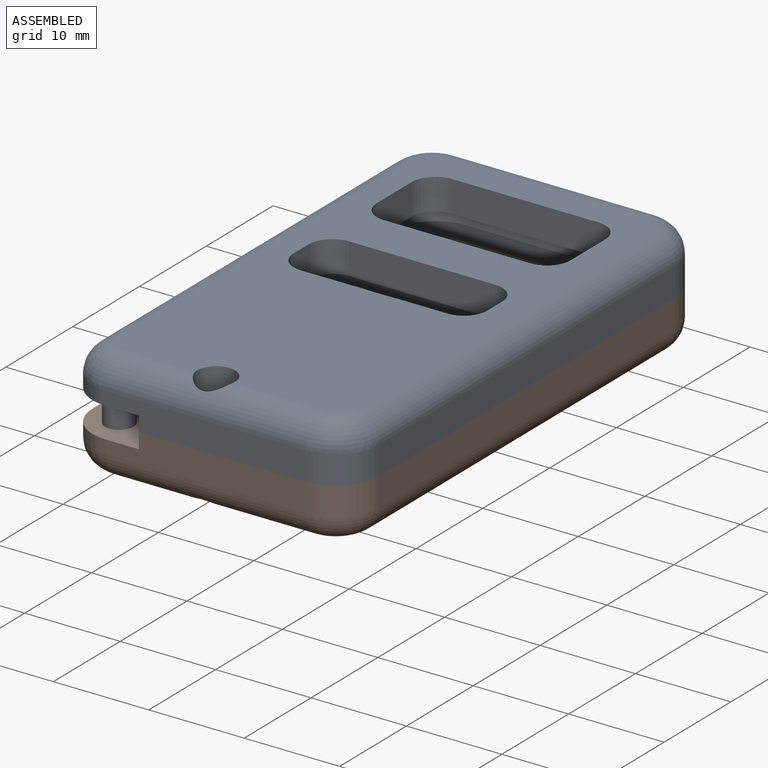
[diagram: assembled view]
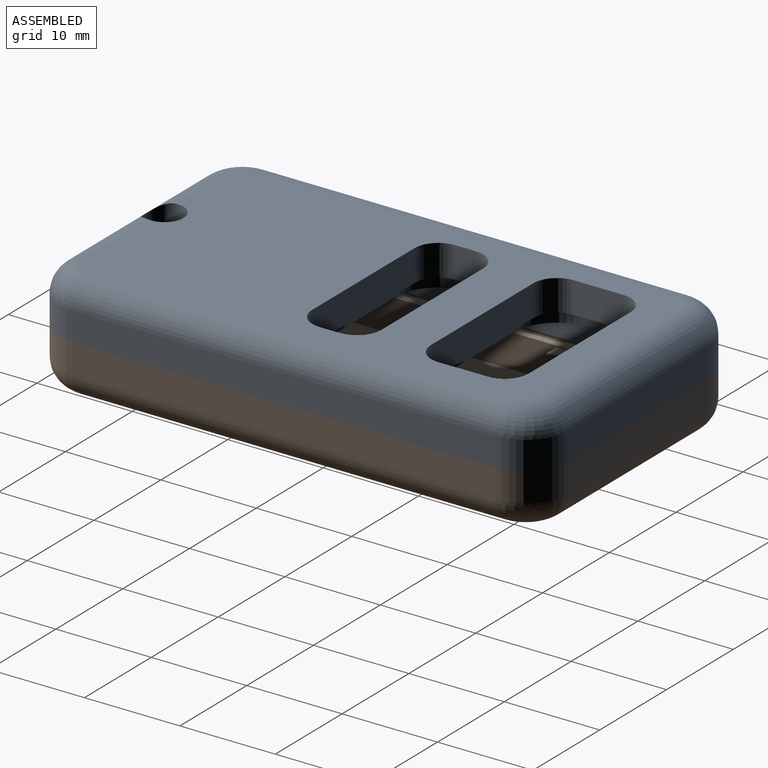
[diagram: assembled view, second angle]
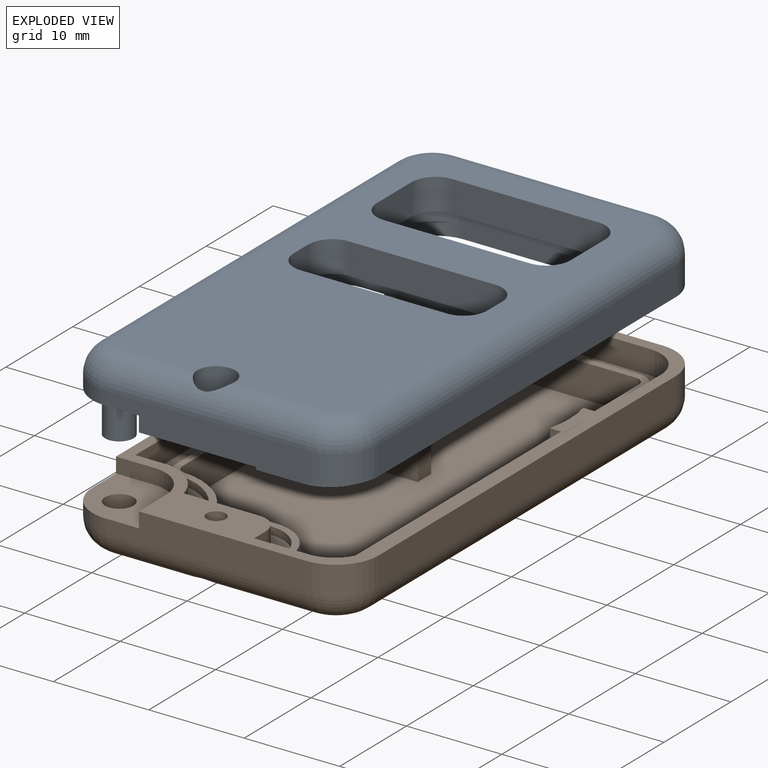
[diagram: exploded view]
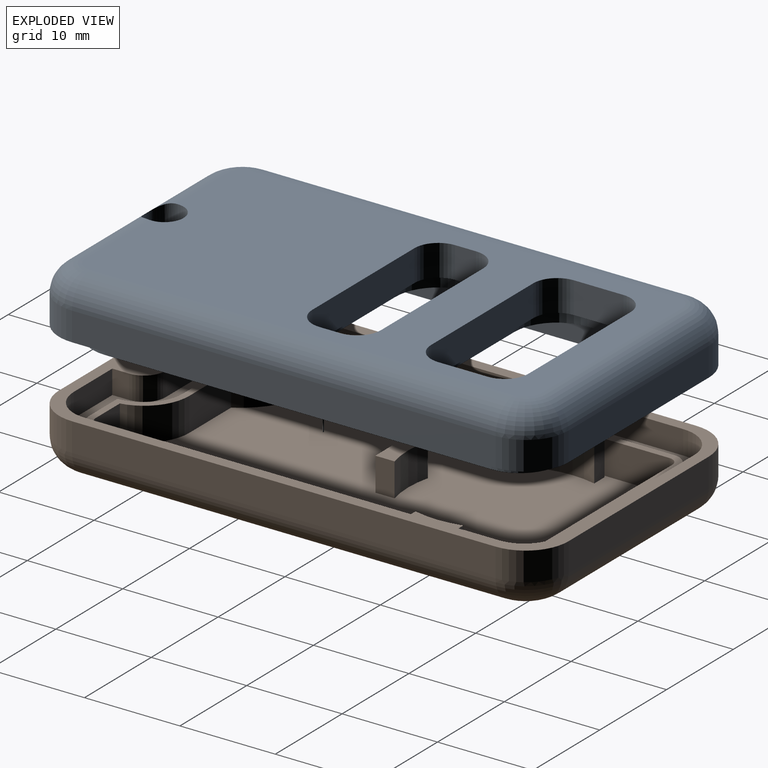
[diagram: exploded view, second angle]
ASSEMBLY  parts=2 mates=2
PART A: 99 faces, bbox 30x53.4x8.5 mm
  f0: plane 53.4x30mm, normal (0,0,1), area 338.4mm2, adj f1,f13,f14,f16,f17,f18,f19,f20
  f1: plane 4x1.6mm, normal (0,-1,0), area 6.4mm2, adj f0,f2,f30,f98
  f2: plane 8x8mm, normal (0,0,1), area 49.2mm2, adj f1,f14,f15,f29,f30,f31,f98
  f3: plane 5.67x3mm, normal (0,0,1), area 6.3mm2, adj f9,f83,f84
  f4: plane 24.26x3.54mm, normal (0,0,1), area 10mm2, adj f8,f10,f33,f60,f68,f82
  f5: plane 3.65x2.4mm, normal (0,0,1), area 3.5mm2, adj f41,f66,f67
  f6: plane 24.7x22.31mm, normal (0,0,1), area 414.4mm2, adj f9,f34,f35,f36,f37,f38,f39,f40
  f7: plane 24.2x11.2mm, normal (0,0,1), area 113.6mm2, adj f41,f44,f45,f46,f47,f48,f49,f50
  f8: cylinder r=3.8mm len=4mm, axis (0,0,1), area 23.4mm2, adj f4,f9,f33,f60,f69,f97
  f9: plane 37.75x4mm, normal (-1,0,0), area 120.8mm2, adj f3,f6,f8,f34,f69,f80,f83,f84
  f10: cylinder r=3.8mm len=4mm, axis (0,0,1), area 20.5mm2, adj f4,f33,f41,f68,f69,f97
  f11: plane 24.2x14.2mm, normal (0,0,1), area 125.3mm2, adj f41,f52,f53,f54,f55,f56,f57,f58
  f12: plane 47.8x24.4mm, normal (0,0,-1), area 814.3mm2, adj f21,f22,f23,f24,f25,f26,f27,f28
  f13: cylinder r=1mm len=3.3mm, axis (0,0,1), area 20.7mm2, adj f0,f42
  f14: plane 21x3mm, normal (0,-1,0), area 57.4mm2, adj f0,f2,f15,f20,f28,f29
  f15: cylinder r=4.5mm len=4.5mm, axis (0,0,-1), area 9.9mm2, adj f2,f14,f26,f98
  f16: plane 44.4x3mm, normal (-1,0,0), area 133.2mm2, adj f0,f17,f20,f25
  f17: cylinder r=4.5mm len=4.5mm, axis (0,0,-1), area 21.2mm2, adj f0,f16,f18,f23
  f18: plane 21x3mm, normal (0,1,0), area 63mm2, adj f0,f17,f19,f21
  f19: cylinder r=4.5mm len=4.5mm, axis (0,0,-1), area 21.2mm2, adj f0,f18,f22,f98
  f20: cylinder r=4.5mm len=4.5mm, axis (0,0,-1), area 21.2mm2, adj f0,f14,f16,f27
  f21: cylinder r=2.8mm len=21mm, axis (1,0,0), area 92.4mm2, adj f12,f18,f22,f23
  f22: torus R=1.7mm, axis (0,0,1), area 24.1mm2, adj f12,f19,f21,f24
  f23: torus R=1.7mm, axis (0,0,1), area 24.1mm2, adj f12,f17,f21,f25
  f24: cylinder r=2.8mm len=44.4mm, axis (0,-1,0), area 195.3mm2, adj f12,f22,f26,f98
  f25: cylinder r=2.8mm len=44.4mm, axis (0,1,0), area 195.3mm2, adj f12,f16,f23,f27
  f26: torus R=1.7mm, axis (0,0,1), area 24.1mm2, adj f12,f15,f24,f28
  f27: torus R=1.7mm, axis (0,0,1), area 24.1mm2, adj f12,f20,f25,f28
  f28: cylinder r=2.8mm len=21mm, axis (-1,0,0), area 86.5mm2, adj f12,f14,f26,f27,f43
  f29: plane 4x1.6mm, normal (1,0,0), area 6.4mm2, adj f0,f2,f14,f30
  f30: cylinder r=4mm len=4mm, axis (0,0,1), area 10.1mm2, adj f0,f1,f2,f29
  f31: cylinder r=1.5mm len=4.3mm, axis (0,0,-1), area 40.5mm2, adj f2,f32
  f32: plane 3x3mm, normal (0,0,1), area 7.1mm2, adj f31
  f33: plane 17.1x4mm, normal (0,-1,0), area 68.4mm2, adj f4,f8,f10,f97
  f34: plane 4x1.35mm, normal (0,1,0), area 5.4mm2, adj f6,f9,f35,f97
  f35: cylinder r=5.2mm len=5.06mm, axis (0,0,1), area 27.8mm2, adj f6,f34,f36,f97
  f36: plane 7.94x4mm, normal (0,1,0), area 31.8mm2, adj f6,f35,f37,f97
  f37: cylinder r=2.25mm len=4mm, axis (0,0,1), area 14.1mm2, adj f6,f36,f38,f97
  f38: plane 4x0.3mm, normal (-1,0,0), area 1.2mm2, adj f6,f37,f39,f97
  f39: plane 4.3x4mm, normal (0,1,0), area 17.2mm2, adj f6,f38,f40,f97
  f40: cylinder r=3.8mm len=4mm, axis (0,0,1), area 23.9mm2, adj f6,f39,f41,f97
  f41: plane 40.5x4mm, normal (1,0,0), area 146.9mm2, adj f5,f6,f7,f10,f11,f40,f61,f62
  f42: plane 4x4mm, normal (0,0,-1), area 9.4mm2, adj f13,f43
  f43: cylinder r=2mm len=4mm, axis (0,0,-1), area 29.5mm2, adj f12,f28,f42
  f44: plane 15.3x3.3mm, normal (0,-1,0), area 50.5mm2, adj f7,f12,f45,f51
  f45: cylinder r=2.5mm len=3.3mm, axis (0,0,1), area 13mm2, adj f7,f12,f44,f46
  f46: plane 3.3x2.2mm, normal (-1,0,0), area 7.3mm2, adj f7,f12,f45,f47
  f47: cylinder r=2.5mm len=3.3mm, axis (0,0,1), area 13mm2, adj f7,f12,f46,f48
  f48: plane 15.3x3.3mm, normal (0,1,0), area 50.5mm2, adj f7,f12,f47,f49
  f49: cylinder r=2.5mm len=3.3mm, axis (0,0,1), area 13mm2, adj f7,f12,f48,f50
  f50: plane 3.3x2.2mm, normal (1,0,0), area 7.3mm2, adj f7,f12,f49,f51
  f51: cylinder r=2.5mm len=3.3mm, axis (0,0,1), area 13mm2, adj f7,f12,f44,f50
  f52: plane 5.2x3.3mm, normal (-1,0,0), area 17.2mm2, adj f11,f12,f53,f59
  f53: cylinder r=2.5mm len=3.3mm, axis (0,0,1), area 13mm2, adj f11,f12,f52,f54
  f54: plane 15.3x3.3mm, normal (0,1,0), area 50.5mm2, adj f11,f12,f53,f55
  f55: cylinder r=2.5mm len=3.3mm, axis (0,0,1), area 13mm2, adj f11,f12,f54,f56
  f56: plane 5.2x3.3mm, normal (1,0,0), area 17.2mm2, adj f11,f12,f55,f57
  f57: cylinder r=2.5mm len=3.3mm, axis (0,0,1), area 13mm2, adj f11,f12,f56,f58
  f58: plane 15.3x3.3mm, normal (0,-1,0), area 50.5mm2, adj f11,f12,f57,f59
  f59: cylinder r=2.5mm len=3.3mm, axis (0,0,1), area 13mm2, adj f11,f12,f52,f58
  f60: cylinder r=5.5mm len=4.99mm, axis (0,0,-1), area 11.6mm2, adj f4,f8,f69,f82
  f61: cylinder r=4.5mm len=4.4mm, axis (0,0,-1), area 11.3mm2, adj f11,f41,f69,f70
  f62: cylinder r=4.5mm len=4.4mm, axis (0,0,-1), area 11.3mm2, adj f11,f41,f69,f74
  f63: cylinder r=4.5mm len=4.4mm, axis (0,0,-1), area 11.3mm2, adj f7,f41,f69,f75
  f64: cylinder r=4.5mm len=4.4mm, axis (0,0,-1), area 11.3mm2, adj f7,f41,f69,f79
  f65: cylinder r=5.5mm len=4.4mm, axis (0,0,-1), area 9.4mm2, adj f6,f41,f69,f81
  f66: cylinder r=5.5mm len=2.4mm, axis (0,0,-1), area 5.7mm2, adj f5,f41,f67,f69
  f67: cylinder r=5.5mm len=2.4mm, axis (0,0,-1), area 5.7mm2, adj f5,f41,f66,f69
  f68: cylinder r=5.5mm len=3.97mm, axis (0,0,-1), area 8.2mm2, adj f4,f10,f69,f82
  f69: plane 28.65x24.7mm, normal (0,0,1), area 101.4mm2, adj f8,f9,f10,f41,f60,f61,f62,f63
  f70: plane 15.3x1.85mm, normal (0,1,0), area 28.3mm2, adj f11,f61,f69,f71
  f71: cylinder r=4.5mm len=4.5mm, axis (0,0,-1), area 13.1mm2, adj f11,f69,f70,f72
  f72: plane 5.2x1.85mm, normal (-1,0,0), area 9.6mm2, adj f11,f69,f71,f73
  f73: cylinder r=4.5mm len=4.5mm, axis (0,0,-1), area 13.1mm2, adj f11,f69,f72,f74
  f74: plane 15.3x1.85mm, normal (0,-1,0), area 28.3mm2, adj f11,f62,f69,f73
  f75: plane 15.3x1.85mm, normal (0,1,0), area 28.3mm2, adj f7,f63,f69,f76
  f76: cylinder r=4.5mm len=4.5mm, axis (0,0,-1), area 13.1mm2, adj f7,f69,f75,f77
  f77: plane 2.2x1.85mm, normal (-1,0,0), area 4.1mm2, adj f7,f69,f76,f78
  f78: cylinder r=4.5mm len=4.5mm, axis (0,0,-1), area 13.1mm2, adj f7,f69,f77,f79
  f79: plane 15.3x1.85mm, normal (0,-1,0), area 28.3mm2, adj f7,f64,f69,f78
  f80: cylinder r=5.5mm len=5mm, axis (0,0,-1), area 11.6mm2, adj f6,f9,f69,f81
  f81: plane 15.3x1.85mm, normal (0,-1,0), area 28.3mm2, adj f6,f65,f69,f80
  f82: plane 15.3x1.85mm, normal (0,1,0), area 28.3mm2, adj f4,f60,f68,f69
  f83: cylinder r=5.5mm len=3mm, axis (0,0,-1), area 7.8mm2, adj f3,f9,f69,f84
  f84: cylinder r=5.5mm len=3mm, axis (0,0,-1), area 7.8mm2, adj f3,f9,f69,f83
  f85: plane 40.5x1.5mm, normal (-1,0,0), area 60.8mm2, adj f0,f86,f96,f97
  f86: cylinder r=4.3mm len=4.3mm, axis (0,0,-1), area 10.1mm2, adj f0,f85,f87,f97
  f87: plane 17.1x1.5mm, normal (0,1,0), area 25.7mm2, adj f0,f86,f88,f97
  f88: cylinder r=4.3mm len=4.3mm, axis (0,0,-1), area 10.1mm2, adj f0,f87,f89,f97
  f89: plane 38.25x1.5mm, normal (1,0,0), area 57.4mm2, adj f0,f88,f90,f97
  f90: plane 1.85x1.5mm, normal (0,-1,0), area 2.8mm2, adj f0,f89,f91,f97
  f91: cylinder r=4.7mm len=4.65mm, axis (0,0,-1), area 10mm2, adj f0,f90,f92,f97
  f92: plane 8.35x1.5mm, normal (0,-1,0), area 12.5mm2, adj f0,f91,f93,f97
  f93: cylinder r=1.75mm len=1.75mm, axis (0,0,-1), area 4.1mm2, adj f0,f92,f94,f97
  f94: plane 1.5x0.8mm, normal (1,0,0), area 1.2mm2, adj f0,f93,f95,f97
  f95: plane 4.8x1.5mm, normal (0,-1,0), area 7.2mm2, adj f0,f94,f96,f97
  f96: cylinder r=4.3mm len=4.3mm, axis (0,0,-1), area 10.1mm2, adj f0,f85,f95,f97
  f97: plane 49.1x25.7mm, normal (0,0,1), area 69.7mm2, adj f8,f9,f10,f33,f34,f35,f36,f37
  f98: plane 44.4x3mm, normal (1,0,0), area 127.6mm2, adj f0,f1,f2,f15,f19,f24
PART B: 78 faces, bbox 30x53.4x5.8 mm
  f0: plane 47.8x24.4mm, normal (0,0,-1), area 1156.8mm2, adj f13,f14,f15,f16,f17,f18,f19,f20
  f1: cylinder r=1mm len=3.3mm, axis (0,0,1), area 20.7mm2, adj f4,f76
  f2: plane 6.63x3.5mm, normal (-1,0,0), area 23.2mm2, adj f50,f51,f60,f68
  f3: plane 51x27.6mm, normal (0,0,1), area 256.6mm2, adj f27,f28,f29,f30,f31,f32,f33,f34
  f4: plane 53.4x30mm, normal (0,0,1), area 224.3mm2, adj f1,f5,f6,f8,f9,f10,f11,f12
  f5: plane 44.4x3mm, normal (-1,0,0), area 127.6mm2, adj f4,f7,f11,f16,f21,f24
  f6: plane 21x3mm, normal (0,-1,0), area 57.4mm2, adj f4,f7,f12,f20,f22,f24
  f7: cylinder r=4.5mm len=4.5mm, axis (0,0,-1), area 9.9mm2, adj f5,f6,f18,f24
  f8: plane 44.4x3mm, normal (1,0,0), area 133.2mm2, adj f4,f9,f12,f17
  f9: cylinder r=4.5mm len=4.5mm, axis (0,0,-1), area 21.2mm2, adj f4,f8,f10,f15
  f10: plane 21x3mm, normal (0,1,0), area 63mm2, adj f4,f9,f11,f13
  f11: cylinder r=4.5mm len=4.5mm, axis (0,0,-1), area 21.2mm2, adj f4,f5,f10,f14
  f12: cylinder r=4.5mm len=4.5mm, axis (0,0,-1), area 21.2mm2, adj f4,f6,f8,f19
  f13: cylinder r=2.8mm len=21mm, axis (-1,0,0), area 92.4mm2, adj f0,f10,f14,f15
  f14: torus R=1.7mm, axis (0,0,1), area 24.1mm2, adj f0,f11,f13,f16
  f15: torus R=1.7mm, axis (0,0,1), area 24.1mm2, adj f0,f9,f13,f17
  f16: cylinder r=2.8mm len=44.4mm, axis (0,-1,0), area 195.3mm2, adj f0,f5,f14,f18
  f17: cylinder r=2.8mm len=44.4mm, axis (0,1,0), area 195.3mm2, adj f0,f8,f15,f19
  f18: torus R=1.7mm, axis (0,0,1), area 24.1mm2, adj f0,f7,f16,f20
  f19: torus R=1.7mm, axis (0,0,1), area 24.1mm2, adj f0,f12,f17,f20
  f20: cylinder r=2.8mm len=21mm, axis (1,0,0), area 86.5mm2, adj f0,f6,f18,f19,f77
  f21: plane 4x1.6mm, normal (0,-1,0), area 6.4mm2, adj f4,f5,f23,f24
  f22: plane 4x1.6mm, normal (-1,0,0), area 6.4mm2, adj f4,f6,f23,f24
  f23: cylinder r=4mm len=4mm, axis (0,0,1), area 10.1mm2, adj f4,f21,f22,f24
  f24: plane 8x8mm, normal (0,0,1), area 49.2mm2, adj f5,f6,f7,f21,f22,f23,f25
  f25: cylinder r=1.5mm len=3mm, axis (0,0,1), area 18.8mm2, adj f24,f26
  f26: plane 3x3mm, normal (0,0,1), area 7.1mm2, adj f25
  f27: plane 20x2.5mm, normal (0,-1,0), area 50mm2, adj f3,f4,f28,f38
  f28: cylinder r=3.8mm len=3.8mm, axis (0,0,1), area 14.9mm2, adj f3,f4,f27,f29
  f29: plane 39.2x2.5mm, normal (1,0,0), area 98mm2, adj f3,f4,f28,f30
  f30: plane 2.8x2.5mm, normal (0,1,0), area 7mm2, adj f3,f4,f29,f31
  f31: cylinder r=5.2mm len=5.06mm, axis (0,0,1), area 17.4mm2, adj f3,f4,f30,f32
  f32: plane 7.94x2.5mm, normal (0,1,0), area 19.9mm2, adj f3,f4,f31,f33
  f33: cylinder r=2.25mm len=2.5mm, axis (0,0,1), area 8.8mm2, adj f3,f4,f32,f34
  f34: plane 2.5x1.75mm, normal (1,0,0), area 4.4mm2, adj f3,f4,f33,f35
  f35: plane 5.75x2.5mm, normal (0,1,0), area 14.4mm2, adj f3,f4,f34,f36
  f36: cylinder r=3.8mm len=3.8mm, axis (0,0,1), area 14.9mm2, adj f3,f4,f35,f37
  f37: plane 43.4x2.5mm, normal (-1,0,0), area 108.5mm2, adj f3,f4,f36,f38
  f38: cylinder r=3.8mm len=3.8mm, axis (0,0,1), area 14.9mm2, adj f3,f4,f27,f37
  f39: plane 36.03x0.8mm, normal (-1,0,0), area 28.8mm2, adj f3,f40,f49,f50
  f40: cylinder r=1.7mm len=1.69mm, axis (0,0,-1), area 2mm2, adj f3,f39,f41,f50
  f41: cylinder r=7mm len=5.76mm, axis (0,0,-1), area 5.9mm2, adj f3,f40,f42,f50
  f42: plane 6.68x0.8mm, normal (0,-1,0), area 5.3mm2, adj f3,f41,f43,f50
  f43: cylinder r=4.05mm len=4.05mm, axis (0,0,-1), area 5mm2, adj f3,f42,f44,f50
  f44: plane 4.25x0.8mm, normal (0,-1,0), area 3.4mm2, adj f3,f43,f45,f50
  f45: cylinder r=1.7mm len=1.7mm, axis (0,0,-1), area 2.1mm2, adj f3,f44,f46,f50
  f46: plane 44x0.8mm, normal (1,0,0), area 35.2mm2, adj f3,f45,f47,f50
  f47: cylinder r=1.7mm len=1.7mm, axis (0,0,-1), area 2.1mm2, adj f3,f46,f48,f50
  f48: plane 20.6x0.8mm, normal (0,1,0), area 16.5mm2, adj f3,f47,f49,f50
  f49: cylinder r=1.7mm len=1.7mm, axis (0,0,-1), area 2.1mm2, adj f3,f39,f48,f50
  f50: plane 47.4x24mm, normal (0,0,1), area 98.3mm2, adj f2,f39,f40,f41,f42,f43,f44,f45
  f51: plane 46x22.6mm, normal (0,0,1), area 930.5mm2, adj f2,f52,f53,f54,f55,f56,f57,f58
  f52: plane 36.03x3.5mm, normal (1,0,0), area 126.1mm2, adj f50,f51,f53,f62
  f53: cylinder r=1mm len=3.5mm, axis (0,0,1), area 5.2mm2, adj f50,f51,f52,f54
  f54: cylinder r=7.7mm len=6.13mm, axis (0,0,1), area 26.7mm2, adj f50,f51,f53,f55
  f55: plane 6.25x3.5mm, normal (0,1,0), area 21.9mm2, adj f50,f51,f54,f56
  f56: cylinder r=4.75mm len=4.69mm, axis (0,0,1), area 23.5mm2, adj f50,f51,f55,f57
  f57: plane 3.61x3.5mm, normal (0,1,0), area 12.6mm2, adj f50,f51,f56,f58
  f58: cylinder r=1mm len=3.5mm, axis (0,0,1), area 5.5mm2, adj f50,f51,f57,f59
  f59: plane 32.38x3.5mm, normal (-1,0,0), area 113.3mm2, adj f50,f51,f58,f70
  f60: cylinder r=1mm len=3.5mm, axis (0,0,1), area 5.5mm2, adj f2,f50,f51,f61
  f61: plane 20.6x3.5mm, normal (0,-1,0), area 72.1mm2, adj f50,f51,f60,f62
  f62: cylinder r=1mm len=3.5mm, axis (0,0,1), area 5.5mm2, adj f50,f51,f52,f61
  f63: plane 5x1.54mm, normal (0,0,1), area 6.6mm2, adj f64,f65,f66,f67
  f64: cylinder r=10.12mm len=5mm, axis (0,0,-1), area 17.7mm2, adj f51,f63,f65,f67
  f65: plane 3.5x1.54mm, normal (0,1,0), area 5.4mm2, adj f51,f63,f64,f66
  f66: plane 5x3.5mm, normal (-1,0,0), area 17.5mm2, adj f51,f63,f65,f67
  f67: plane 3.5x1.54mm, normal (0,-1,0), area 5.4mm2, adj f51,f63,f64,f66
  f68: plane 3.5x1.19mm, normal (0,1,0), area 4.2mm2, adj f2,f50,f51,f69
  f69: cylinder r=10.12mm len=5mm, axis (0,0,-1), area 17.7mm2, adj f50,f51,f68,f70
  f70: plane 3.5x1.19mm, normal (0,-1,0), area 4.2mm2, adj f50,f51,f59,f69
  f71: plane 5x2mm, normal (0,0,1), area 9mm2, adj f72,f73,f74,f75
  f72: cylinder r=10.12mm len=5mm, axis (0,0,-1), area 17.7mm2, adj f51,f71,f73,f75
  f73: plane 3.5x2mm, normal (-1,0,0), area 7mm2, adj f51,f71,f72,f74
  f74: plane 5x3.5mm, normal (0,-1,0), area 17.5mm2, adj f51,f71,f73,f75
  f75: plane 3.5x2mm, normal (1,0,0), area 7mm2, adj f51,f71,f72,f74
  f76: plane 4x4mm, normal (0,0,-1), area 9.4mm2, adj f1,f77
  f77: cylinder r=2mm len=4mm, axis (0,0,-1), area 29.5mm2, adj f0,f20,f76
PLACE A rot(axis=(0,-1,0),180deg) t=(-43.54,-39.29,20.62)mm
PLACE B t=(-43.54,-39.29,9.02)mm
MATE cylindrical B.f1 <-> A.f13  axis (0,0,-1) through (-29.54,-36.29,9.02)mm
MATE planar B.f4 <-> A.f0  axis (0,0,1) through (-18.04,14.11,14.82)mm
